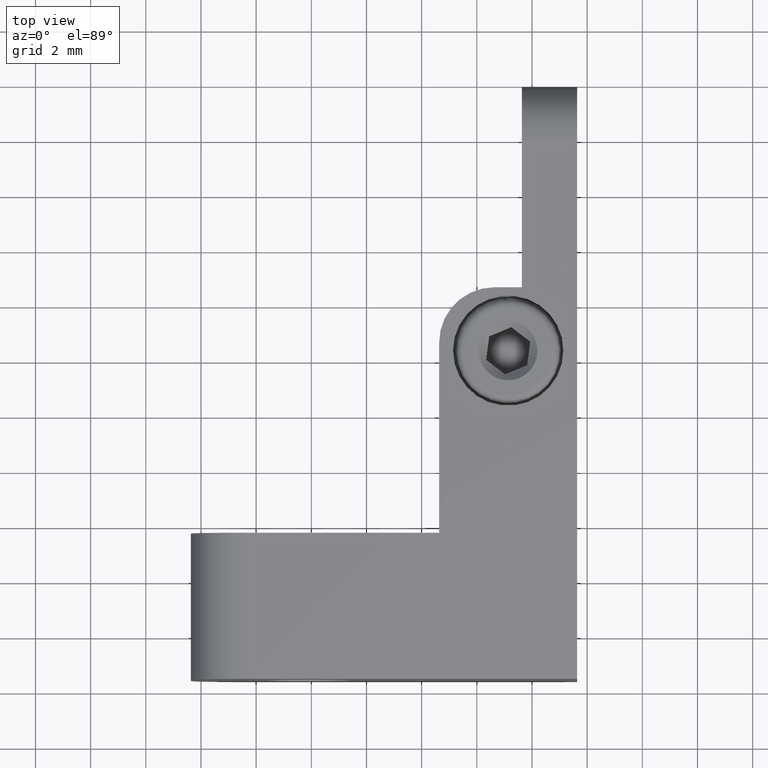
[diagram: clean part render]
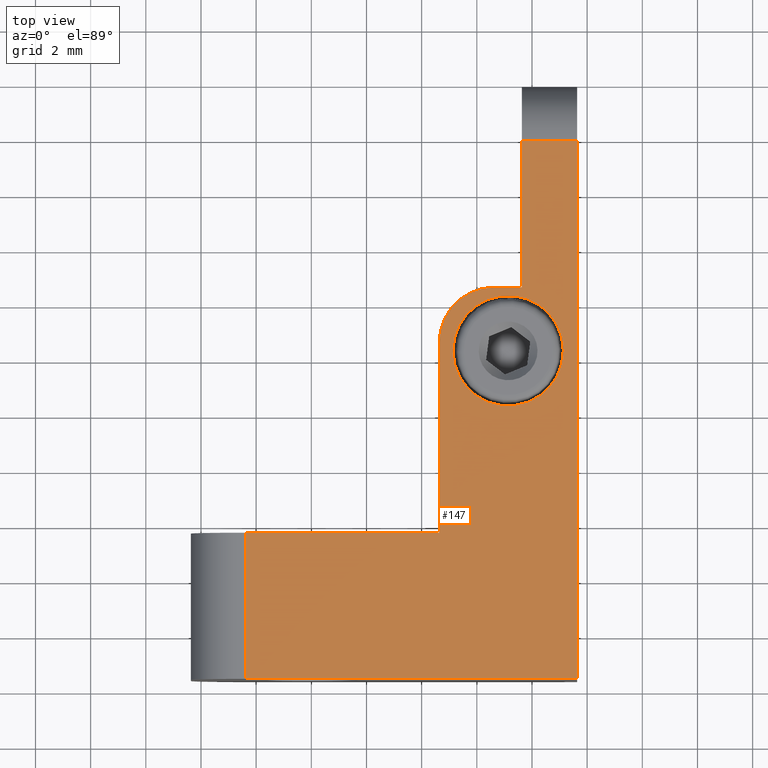
[diagram: same view with one face highlighted and labeled with its STEP entity id]
A machine part, top view. The second image highlights one B-rep face of the part: STEP entity #147.
In plain terms, the highlighted planar face has unit normal (0, 0, -1).
Its self-contained STEP definition (entity closure, byte-faithful):
#12 = CARTESIAN_POINT ( 'NONE',  ( -5.000000000000000888, 14.19999999999999929, 3.350000000000000089 ) ) ;
#19 = VECTOR ( 'NONE', #2007, 1000.000000000000000 ) ;
#81 = DIRECTION ( 'NONE',  ( 1.000000000000000000, 0.000000000000000000, 0.000000000000000000 ) ) ;
#105 = CARTESIAN_POINT ( 'NONE',  ( 0.000000000000000000, 19.49999999999999645, 3.350000000000000089 ) ) ;
#108 = CARTESIAN_POINT ( 'NONE',  ( -12.00000000000000000, 0.000000000000000000, 3.350000000000000089 ) ) ;
#118 = DIRECTION ( 'NONE',  ( 1.000000000000000000, 0.000000000000000000, 0.000000000000000000 ) ) ;
#134 = EDGE_CURVE ( 'NONE', #216, #1496, #1905, .T. ) ;
#147 = ADVANCED_FACE ( 'NONE', ( #846, #1059 ), #1520, .F. ) ;
#153 = LINE ( 'NONE', #828, #731 ) ;
#155 = VERTEX_POINT ( 'NONE', #520 ) ;
#216 = VERTEX_POINT ( 'NONE', #1746 ) ;
#264 = ORIENTED_EDGE ( 'NONE', *, *, #1369, .T. ) ;
#278 = CARTESIAN_POINT ( 'NONE',  ( -2.500000000000000444, 11.90000000000000036, 3.350000000000000089 ) ) ;
#290 = CIRCLE ( 'NONE', #1519, 2.000000000000000000 ) ;
#305 = ORIENTED_EDGE ( 'NONE', *, *, #1888, .T. ) ;
#322 = DIRECTION ( 'NONE',  ( 1.000000000000000000, -0.000000000000000000, -0.000000000000000000 ) ) ;
#345 = EDGE_CURVE ( 'NONE', #1104, #216, #1834, .T. ) ;
#384 = EDGE_CURVE ( 'NONE', #1366, #1757, #1459, .T. ) ;
#479 = CARTESIAN_POINT ( 'NONE',  ( -2.500000000000000444, 11.90000000000000036, 3.350000000000000089 ) ) ;
#487 = EDGE_CURVE ( 'NONE', #789, #1598, #2156, .T. ) ;
#507 = ORIENTED_EDGE ( 'NONE', *, *, #384, .T. ) ;
#511 = DIRECTION ( 'NONE',  ( -1.000000000000000000, -0.000000000000000000, -0.000000000000000000 ) ) ;
#520 = CARTESIAN_POINT ( 'NONE',  ( -12.00000000000000000, 5.299999999999999822, 3.350000000000000089 ) ) ;
#545 = CARTESIAN_POINT ( 'NONE',  ( -3.000000000000000888, 12.19999999999999929, 3.350000000000000089 ) ) ;
#549 = CIRCLE ( 'NONE', #2096, 2.000000000000000000 ) ;
#551 = ORIENTED_EDGE ( 'NONE', *, *, #487, .T. ) ;
#581 = VECTOR ( 'NONE', #1347, 1000.000000000000000 ) ;
#677 = CARTESIAN_POINT ( 'NONE',  ( 0.000000000000000000, 0.000000000000000000, 3.350000000000000089 ) ) ;
#731 = VECTOR ( 'NONE', #511, 1000.000000000000000 ) ;
#743 = LINE ( 'NONE', #916, #2084 ) ;
#779 = EDGE_CURVE ( 'NONE', #1242, #1416, #549, .T. ) ;
#780 = CARTESIAN_POINT ( 'NONE',  ( 0.000000000000000000, 19.49999999999999645, 3.350000000000000089 ) ) ;
#785 = DIRECTION ( 'NONE',  ( 1.188166764367676342E-16, -1.000000000000000000, 0.000000000000000000 ) ) ;
#789 = VERTEX_POINT ( 'NONE', #1280 ) ;
#828 = CARTESIAN_POINT ( 'NONE',  ( -14.00000000000000000, 5.299999999999999822, 3.350000000000000089 ) ) ;
#846 = FACE_OUTER_BOUND ( 'NONE', #2106, .T. ) ;
#850 = EDGE_CURVE ( 'NONE', #992, #1366, #1636, .T. ) ;
#859 = AXIS2_PLACEMENT_3D ( 'NONE', #677, #1883, #1358 ) ;
#895 = CARTESIAN_POINT ( 'NONE',  ( -3.000000000000000888, 14.19999999999999929, 3.350000000000000089 ) ) ;
#899 = VECTOR ( 'NONE', #322, 1000.000000000000000 ) ;
#916 = CARTESIAN_POINT ( 'NONE',  ( -12.00000000000000000, 0.000000000000000000, 3.350000000000000089 ) ) ;
#938 = CARTESIAN_POINT ( 'NONE',  ( -2.000000000000000000, 21.50000000000000000, 3.350000000000000089 ) ) ;
#968 = DIRECTION ( 'NONE',  ( -1.000000000000000000, 0.000000000000000000, 0.000000000000000000 ) ) ;
#978 = ORIENTED_EDGE ( 'NONE', *, *, #779, .F. ) ;
#992 = VERTEX_POINT ( 'NONE', #108 ) ;
#1015 = DIRECTION ( 'NONE',  ( -1.000000000000000000, 0.000000000000000000, 0.000000000000000000 ) ) ;
#1046 = DIRECTION ( 'NONE',  ( -0.000000000000000000, -0.000000000000000000, 1.000000000000000000 ) ) ;
#1059 = FACE_BOUND ( 'NONE', #2062, .T. ) ;
#1071 = VECTOR ( 'NONE', #1811, 1000.000000000000000 ) ;
#1104 = VERTEX_POINT ( 'NONE', #1461 ) ;
#1205 = EDGE_CURVE ( 'NONE', #1757, #1104, #2121, .T. ) ;
#1212 = ORIENTED_EDGE ( 'NONE', *, *, #1570, .T. ) ;
#1220 = EDGE_CURVE ( 'NONE', #1416, #1242, #1595, .T. ) ;
#1225 = ORIENTED_EDGE ( 'NONE', *, *, #1205, .T. ) ;
#1242 = VERTEX_POINT ( 'NONE', #1320 ) ;
#1265 = ORIENTED_EDGE ( 'NONE', *, *, #1220, .F. ) ;
#1280 = CARTESIAN_POINT ( 'NONE',  ( -5.000000000000000888, 12.19999999999999929, 3.350000000000000089 ) ) ;
#1300 = CARTESIAN_POINT ( 'NONE',  ( -5.000000000000000888, 5.299999999999999822, 3.350000000000000089 ) ) ;
#1309 = ORIENTED_EDGE ( 'NONE', *, *, #134, .T. ) ;
#1320 = CARTESIAN_POINT ( 'NONE',  ( -0.5000000000000004441, 11.90000000000000036, 3.350000000000000089 ) ) ;
#1347 = DIRECTION ( 'NONE',  ( -1.000000000000000000, -0.000000000000000000, -0.000000000000000000 ) ) ;
#1358 = DIRECTION ( 'NONE',  ( -1.000000000000000000, 0.000000000000000000, -0.000000000000000000 ) ) ;
#1366 = VERTEX_POINT ( 'NONE', #2056 ) ;
#1369 = EDGE_CURVE ( 'NONE', #1496, #789, #290, .T. ) ;
#1416 = VERTEX_POINT ( 'NONE', #1688 ) ;
#1459 = LINE ( 'NONE', #1480, #19 ) ;
#1461 = CARTESIAN_POINT ( 'NONE',  ( -1.999999999999999556, 19.49999999999999645, 3.350000000000000089 ) ) ;
#1480 = CARTESIAN_POINT ( 'NONE',  ( 0.000000000000000000, 0.000000000000000000, 3.350000000000000089 ) ) ;
#1496 = VERTEX_POINT ( 'NONE', #895 ) ;
#1519 = AXIS2_PLACEMENT_3D ( 'NONE', #545, #1046, #1015 ) ;
#1520 = PLANE ( 'NONE',  #859 ) ;
#1542 = ORIENTED_EDGE ( 'NONE', *, *, #345, .T. ) ;
#1570 = EDGE_CURVE ( 'NONE', #155, #992, #743, .T. ) ;
#1595 = CIRCLE ( 'NONE', #2083, 2.000000000000000000 ) ;
#1598 = VERTEX_POINT ( 'NONE', #2097 ) ;
#1629 = DIRECTION ( 'NONE',  ( -0.000000000000000000, -0.000000000000000000, 1.000000000000000000 ) ) ;
#1636 = LINE ( 'NONE', #1828, #899 ) ;
#1664 = VECTOR ( 'NONE', #968, 1000.000000000000000 ) ;
#1688 = CARTESIAN_POINT ( 'NONE',  ( -4.500000000000000888, 11.90000000000000036, 3.350000000000000089 ) ) ;
#1690 = ORIENTED_EDGE ( 'NONE', *, *, #850, .T. ) ;
#1746 = CARTESIAN_POINT ( 'NONE',  ( -1.999999999999999112, 14.19999999999999929, 3.350000000000000089 ) ) ;
#1757 = VERTEX_POINT ( 'NONE', #780 ) ;
#1781 = DIRECTION ( 'NONE',  ( -0.000000000000000000, -0.000000000000000000, 1.000000000000000000 ) ) ;
#1811 = DIRECTION ( 'NONE',  ( -0.000000000000000000, -1.000000000000000000, -0.000000000000000000 ) ) ;
#1828 = CARTESIAN_POINT ( 'NONE',  ( 0.000000000000000000, 0.000000000000000000, 3.350000000000000089 ) ) ;
#1834 = LINE ( 'NONE', #938, #2061 ) ;
#1883 = DIRECTION ( 'NONE',  ( 0.000000000000000000, 0.000000000000000000, -1.000000000000000000 ) ) ;
#1888 = EDGE_CURVE ( 'NONE', #1598, #155, #153, .T. ) ;
#1905 = LINE ( 'NONE', #12, #581 ) ;
#2007 = DIRECTION ( 'NONE',  ( 0.000000000000000000, 1.000000000000000000, 0.000000000000000000 ) ) ;
#2056 = CARTESIAN_POINT ( 'NONE',  ( 0.000000000000000000, 0.000000000000000000, 3.350000000000000089 ) ) ;
#2061 = VECTOR ( 'NONE', #785, 1000.000000000000000 ) ;
#2062 = EDGE_LOOP ( 'NONE', ( #978, #1265 ) ) ;
#2083 = AXIS2_PLACEMENT_3D ( 'NONE', #479, #1629, #118 ) ;
#2084 = VECTOR ( 'NONE', #2086, 1000.000000000000000 ) ;
#2086 = DIRECTION ( 'NONE',  ( 0.000000000000000000, -1.000000000000000000, 0.000000000000000000 ) ) ;
#2096 = AXIS2_PLACEMENT_3D ( 'NONE', #278, #1781, #81 ) ;
#2097 = CARTESIAN_POINT ( 'NONE',  ( -5.000000000000000888, 5.299999999999999822, 3.350000000000000089 ) ) ;
#2106 = EDGE_LOOP ( 'NONE', ( #305, #1212, #1690, #507, #1225, #1542, #1309, #264, #551 ) ) ;
#2121 = LINE ( 'NONE', #105, #1664 ) ;
#2156 = LINE ( 'NONE', #1300, #1071 ) ;